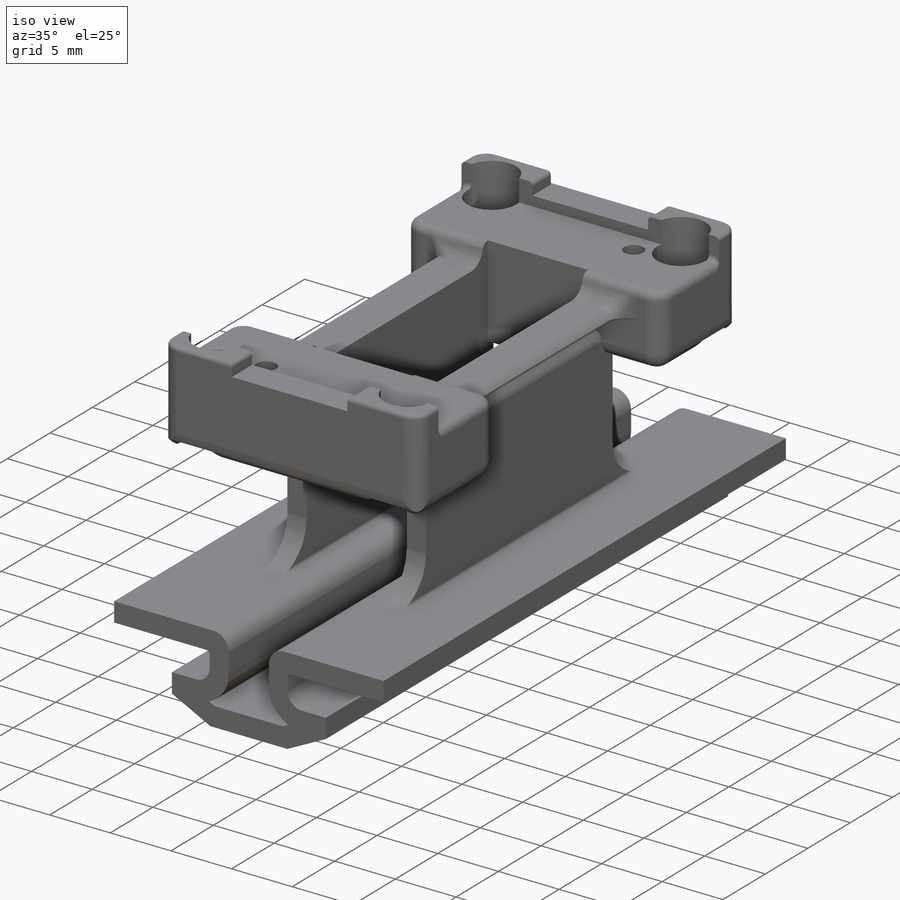
[diagram: iso view]
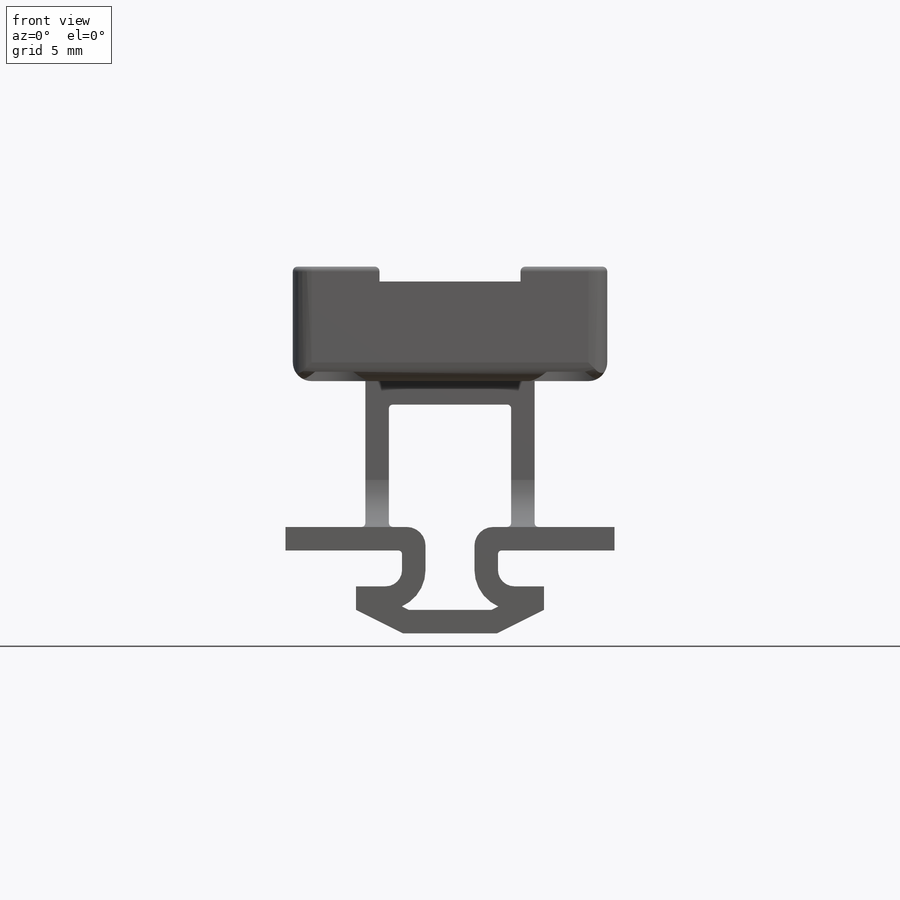
[diagram: front view]
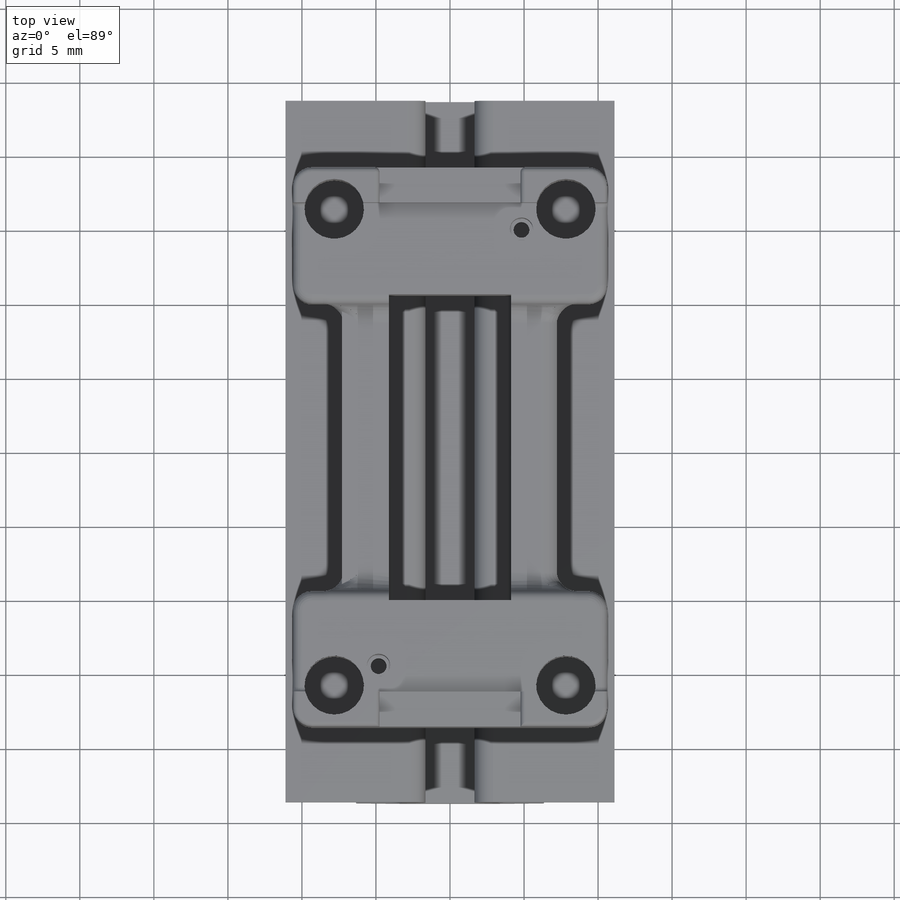
[diagram: top view]
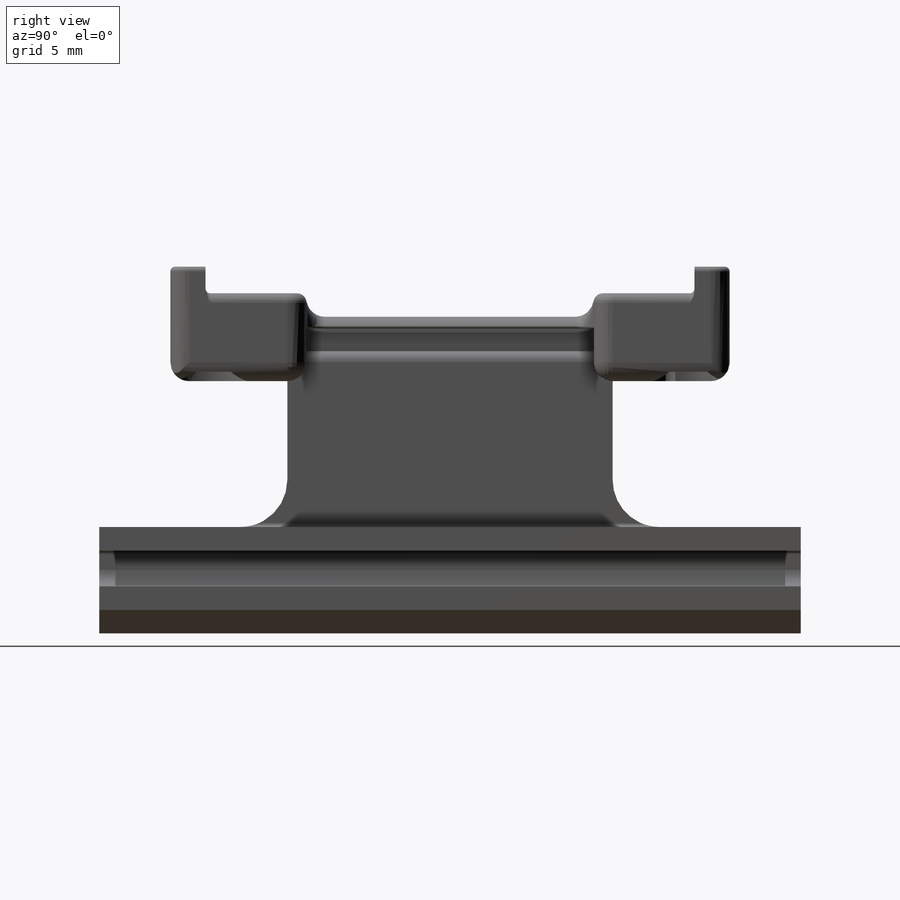
[diagram: right view]
SOLIDWORKS PART (.sldprt)
format: sldprt  version: not decoded by parser v0  size: 2,066,432 bytes
history: native  units: mm
features: sketch x34, extrude x18, fillet x16, cut_extrude x10, mirror x6, plane x4, material x1, pattern_circular x1 (+15 scaffold rows collapsed; 3 parser-record rows omitted)
feature tree (108):
  scaffold x15  (default folders/planes/origin — collapsed)
  material  "Melamine resin"
  sketch  "Sketch1"  dims[c1.D3=3.556mm c1.D4=1.27mm c1.D5=3.556mm c1.D1=19.431mm c1.D2=11.43mm c2.D5=6.35mm]
  plane  "Plane1"  Offset=1.524mm
  sketch  "Sketch2"
  parser-record x3  (decoder bookkeeping rows leaked as tree rows — omitted from the tree; the rows remain in map.json)
  sketch  "Sketch3"  dims[D2=0.3175mm D3=1.5875mm D4=1.27mm D5=3.175mm D1=1.5875mm]
  extrude  "Boss-Extrude1"  Depth=0.79375mm
  sketch  "Sketch5"  dims[D1=0.0mm]
  extrude  "Boss-Extrude2"  Depth=1.524mm
  sketch  "Sketch6"  dims[D1=3.175mm D2=9.525mm]
  extrude  "Boss-Extrude3"  Depth=0.79375mm
  fillet  "Fillet1"  Radius=0.7366mm
  sketch  "Sketch7"  dims[c1.D2=~1.570561mm c1.D1=1.524mm c2.D2=0.0508mm]
  extrude  "Boss-Extrude4"  Depth=0.762mm
  sketch  "Sketch8"
  cut_extrude  "Cut-Extrude1"  [1 undecoded]
  fillet  "Fillet2"  Radius=0.254mm
  sketch  "Sketch10"
  cut_extrude  "Cut-Extrude2"  [1 undecoded]
  mirror  "Mirror1"
  fillet  "Fillet3"  Radius=0.254mm
  sketch  "Sketch11"
  cut_extrude  "Cut-Extrude3"  Depth=0.254mm
  sketch  "Sketch12"  dims[D1=1.27mm D2=1.2319mm D3=~1.28905mm]
  extrude  "Boss-Extrude5"  Depth=1.5875mm
  fillet  "Fillet4"  Radius=1.27mm
  sketch  "Sketch13"  dims[D1=0.0mm]
  extrude  "Boss-Extrude7"  [1 undecoded]
  mirror  "Mirror2"
  sketch  "Sketch14"  dims[D1=0.0mm]
  extrude  "Boss-Extrude8"  [1 undecoded]
  plane  "Plane2"  Offset=6.604mm
  sketch  "Board Envelope"  dims[D1=33.02mm D2=42.0mm]
  sketch  "Sketch17"  dims[c1.D1=5.334mm c1.D2=5.334mm c1.D4=5.588mm c1.D5=2.9464mm c1.D8=~1.00076mm c1.D9=2.9464mm c1.D6=2.9464mm c2.D2=5.08mm c2.D3=5.08mm c2.D6=~8.01624mm c2.D7=~12.32154mm c2.D9=35.78mm c3.D6=12.7mm]
  sketch  "Sketch23"  dims[D1=0.0mm]
  extrude  "Boss-Extrude16"  [1 undecoded]
  plane  "Plane5"
  plane  "Plane6"
  sketch  "Sketch24"  dims[c1.D1=5.08mm c1.D2=6.35mm c2.D1=6.35mm]
  extrude  "Boss-Extrude18"  Depth=1.5875mm
  fillet  "Fillet23"  Radius=1.27mm
  sketch  "Sketch34"  dims[D1=0.0mm]
  extrude  "Boss-Extrude23"  [1 undecoded]
  sketch  "Sketch36"  dims[D1=0.0mm]
  extrude  "Boss-Extrude25"  Depth=1.016mm
  sketch  "Sketch32"  dims[D1=0.127mm]
  cut_extrude  "Cut-Extrude9"  Depth=0.635mm
  sketch  "Sketch37"  dims[D1=0.0mm]
  extrude  "Boss-Extrude26"  [1 undecoded]
  sketch  "Sketch33"  dims[D1=4.0132mm]
  cut_extrude  "Cut-Extrude10"  [1 undecoded]
  sketch  "Sketch42"  dims[D1=4.7625mm D2=3.175mm]
  extrude  "Boss-Extrude29"  Depth=0.79375mm
  sketch  "Sketch53"
  extrude  "Boss-Extrude30"  Depth=1.8mm
  mirror  "Mirror12"
  mirror  "Mirror13"
  fillet  "Fillet29"  Radius=1.27mm
  fillet  "Fillet18"  Radius=1.27mm
  fillet  "Fillet22"  Radius=0.127mm
  sketch  "Sketch44"  dims[D1=4.7625mm]
  cut_extrude  "Cut-Extrude12"  [1 undecoded]
  fillet  "Fillet26"  Radius=1.27mm
  fillet  "Fillet27"  Radius=1.27mm
  fillet  "Fillet30"  Radius=1.27mm
  fillet  "Fillet31"  Radius=0.635mm
  fillet  "Fillet32"  Radius=0.127mm
  fillet  "Fillet33"  Radius=0.3175mm
  sketch  "Sketch51"  dims[D1=1.5748mm D2=14.732mm D3=4.826mm]
  cut_extrude  "Cut-Extrude14"  Depth=3.35788mm
  sketch  "Sketch54"  dims[D1=0.254mm]
  cut_extrude  "Cut-Extrude15"  [1 undecoded]
  pattern_circular  "CirPattern1"  Count=2 Angle=360deg
  sketch  "Sketch55"  dims[D1=25.4mm D2=25.4mm D3=18.161mm]
  sketch  "Sketch56"  dims[D1=0.0mm]
  extrude  "Boss-Extrude31"  [1 undecoded]
  sketch  "Sketch57"  dims[D1=0.0mm]
  extrude  "Boss-Extrude32"  [1 undecoded]
  sketch  "Sketch58"  dims[c1.D1=2.2098mm c1.D2=~0.315686mm c1.D3=1.1049mm c1.D4=~0.959655mm c1.D5=4.4196mm c2.D1=4.4196mm c2.D3=2.2098mm c2.D4=~0.315686mm c2.D5=1.1049mm c2.D6=~0.959655mm c2.D7=4.4196mm c3.D3=2.2098mm c3.D1=~0.315686mm c3.D2=~0.959655mm c3.D4=4.4196mm c4.D1=~32.708465mm c4.D2=~3.774968mm c4.D5=~1.115277mm c4.D6=~4.240406mm c4.D7=~4.30484mm c4.D8=4.3434mm c4.D9=~4.38196mm c4.D10=4.5085mm c4.D11=~5.728246mm c4.D12=~5.802971mm c4.D13=~6.04374mm c4.D14=~6.359233mm c4.D15=~6.436354mm c4.D16=~6.469845mm c4.D17=~7.148424mm c4.D18=~8.710988mm c4.D19=8.9281mm c4.D20=~9.389567mm c4.D21=~9.782092mm c4.D22=~10.097586mm c4.D23=~10.276896mm c4.D24=~10.348637mm c4.D25=~10.413079mm c4.D26=10.4902mm c4.D27=~11.381122mm c4.D28=~12.485349mm c4.D29=~12.535056mm c4.D30=~12.546073mm c4.D31=~12.55709mm c4.D32=~12.676619mm c4.D33=~12.687637mm c4.D34=~12.698654mm c4.D35=~1.115277mm c4.D36=~4.240406mm c4.D37=~4.30484mm c4.D38=4.3434mm c4.D39=~4.38196mm c4.D40=4.5085mm c4.D41=~5.728246mm c4.D42=~5.802971mm c4.D43=~6.04374mm c4.D44=~6.359233mm c4.D45=~6.436354mm c4.D46=~6.469845mm c4.D47=~7.148424mm c4.D48=~8.710988mm c4.D49=8.9281mm c4.D50=~9.389567mm c4.D51=~9.782092mm c4.D52=~10.097586mm c4.D53=~10.276896mm c4.D54=~10.348637mm c4.D55=~10.413079mm c4.D56=10.4902mm c4.D57=~11.381122mm c4.D58=~12.485349mm c4.D59=~12.535056mm c4.D60=~12.546073mm c4.D61=~12.55709mm c4.D62=~12.676619mm c4.D63=~12.687637mm c4.D64=~12.698654mm c5.D5=~14.427276mm c5.D6=~14.438293mm c5.D7=~14.449311mm c5.D8=~14.56884mm c5.D9=~14.579857mm c5.D10=~14.590874mm c5.D11=~14.640581mm c5.D12=~15.744808mm c5.D13=~16.63573mm c5.D14=~16.712851mm c5.D15=~16.777293mm c5.D16=~16.849034mm c5.D17=~17.028344mm c5.D18=~17.343838mm c5.D19=~17.736363mm c5.D20=~18.19783mm c5.D21=~18.414942mm c5.D22=~19.977506mm c5.D23=~20.656085mm c5.D24=~20.689576mm c5.D25=~20.766697mm c5.D26=~21.08219mm c5.D27=~21.322959mm c5.D28=~21.397684mm c5.D29=~22.61743mm c5.D30=~22.74397mm c5.D31=~22.78253mm c5.D32=~22.82109mm c5.D33=~22.885524mm c5.D34=~26.010653mm c5.D35=~28.241207mm c5.D36=~31.366336mm c5.D37=~31.43077mm c5.D38=~31.46933mm c5.D39=~31.50789mm c5.D40=~31.63443mm c5.D41=~32.854176mm c5.D42=~32.928901mm c5.D43=~33.16967mm c5.D44=~33.485163mm c5.D45=~33.562284mm c5.D46=~33.595775mm c5.D47=~34.274354mm c5.D48=~35.836918mm c5.D49=~36.05403mm c5.D50=~36.515497mm c5.D51=~36.908022mm c5.D52=~37.223516mm c5.D53=~37.402826mm c5.D54=~37.474567mm c5.D55=~37.539009mm c5.D56=~37.61613mm c5.D57=~38.507052mm c5.D58=~39.611279mm c5.D59=~39.660986mm c5.D60=~39.672003mm c5.D61=~39.68302mm c5.D62=~39.802549mm c5.D63=~39.813567mm c5.D64=~39.824584mm c6.D5=~39.824584mm]
  sketch  "Sketch59"  dims[c1.D2=~1.335195mm c1.D4=0.254mm c1.D5=1.27mm c1.D10=0.254mm c1.D12=0.254mm c1.D1=22.225mm c2.D2=0.127mm c2.D3=0.0mm c3.D2=0.0mm c3.D5=12.7mm c3.D6=6.35mm c3.D7=3.175mm c3.D8=1.5875mm c3.D9=1.5875mm c3.D11=1.5875mm c3.D13=1.5875mm c4.D2=0.127mm]
  extrude  "Boss-Extrude33"  [1 undecoded]
  mirror  "Mirror14"
  sketch  "Sketch60"  dims[D1=0.0mm]
  extrude  "Boss-Extrude34"  Depth=12.7mm
  mirror  "Mirror15"
  fillet  "Fillet34"  Radius=3.175mm
  sketch  "Sketch62"  dims[D1=1.5875mm D2=1.5875mm D3=1.5875mm]
  cut_extrude  "Cut-Extrude16"  [1 undecoded]
  fillet  "Fillet35"  Radius=1.27mm
  sketch  "Sketch64"
  cut_extrude  "Cut-Extrude18"  [1 undecoded]
decode coverage: 58 of 85 modeling features carry decoded parameters
note: ~ marks probable driven/reference dimensions
note: 15 parameter values undecoded
summary: no parameter record found for 15 features
note: suppression state not decoded; provenance and decode notes live in map.json
